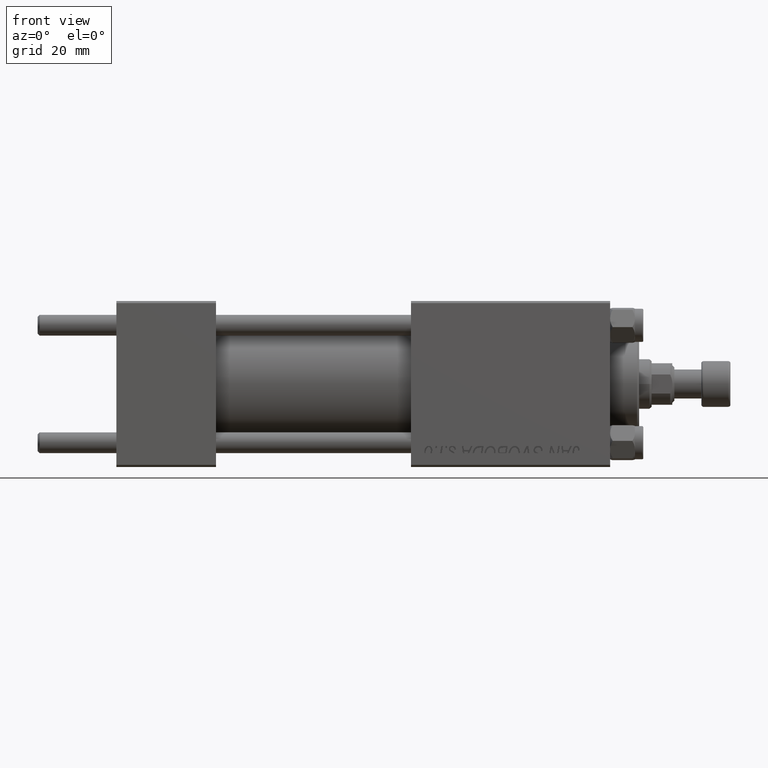
[diagram: clean part render]
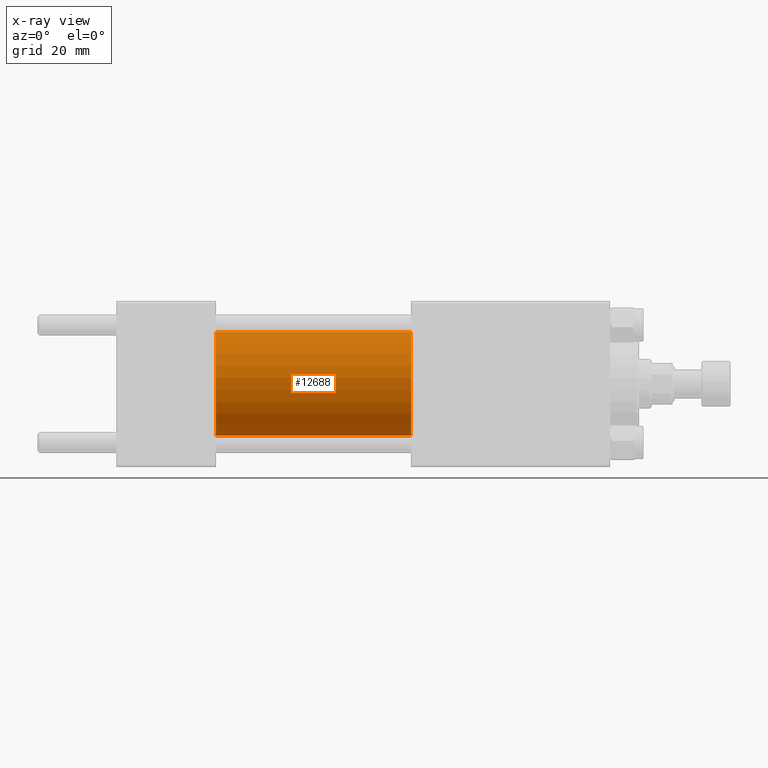
[diagram: x-ray — body ghosted, one internal face saturated and labeled with its STEP entity id]
A machine part, front view, then the same camera in x-ray: the body is ghosted and one INTERNAL B-rep face — a face not visible from any outside direction — is saturated and labeled: STEP entity #12688.
In plain terms, the highlighted cylindrical surface (partial cylindrical patch) has radius 12.5 mm, axis along (-1, -0, -0).
Its self-contained STEP definition (entity closure, byte-faithful):
#4900 = EDGE_CURVE ( 'NONE', #33485, #19794, #13715, .T. ) ;
#6303 = EDGE_LOOP ( 'NONE', ( #9184, #34279, #17910, #30573 ) ) ;
#7961 = CARTESIAN_POINT ( 'NONE',  ( 24.00000000000000000, 0.000000000000000000, 12.49999999999999645 ) ) ;
#9184 = ORIENTED_EDGE ( 'NONE', *, *, #27917, .T. ) ;
#10155 = CARTESIAN_POINT ( 'NONE',  ( 71.00000000000001421, 0.000000000000000000, 12.49999999999999645 ) ) ;
#11142 = CIRCLE ( 'NONE', #39593, 12.49999999999999645 ) ;
#11240 = CARTESIAN_POINT ( 'NONE',  ( 24.00000000000000000, 0.000000000000000000, 0.000000000000000000 ) ) ;
#11495 = DIRECTION ( 'NONE',  ( 1.000000000000000000, 0.000000000000000000, 0.000000000000000000 ) ) ;
#12106 = AXIS2_PLACEMENT_3D ( 'NONE', #11240, #26777, #18628 ) ;
#12688 = ADVANCED_FACE ( 'NONE', ( #33862 ), #21645, .F. ) ;
#13715 = CIRCLE ( 'NONE', #12106, 12.49999999999999645 ) ;
#14783 = DIRECTION ( 'NONE',  ( -1.000000000000000000, -0.000000000000000000, -0.000000000000000000 ) ) ;
#16933 = VECTOR ( 'NONE', #50309, 1000.000000000000000 ) ;
#17910 = ORIENTED_EDGE ( 'NONE', *, *, #4900, .F. ) ;
#18628 = DIRECTION ( 'NONE',  ( 0.000000000000000000, 0.000000000000000000, -1.000000000000000000 ) ) ;
#19794 = VERTEX_POINT ( 'NONE', #24599 ) ;
#21645 = CYLINDRICAL_SURFACE ( 'NONE', #32537, 12.49999999999999645 ) ;
#24599 = CARTESIAN_POINT ( 'NONE',  ( 24.00000000000000000, 1.530808498934191127E-15, -12.49999999999999645 ) ) ;
#25877 = VECTOR ( 'NONE', #38244, 1000.000000000000000 ) ;
#26531 = LINE ( 'NONE', #42053, #25877 ) ;
#26777 = DIRECTION ( 'NONE',  ( 1.000000000000000000, 0.000000000000000000, 0.000000000000000000 ) ) ;
#27776 = DIRECTION ( 'NONE',  ( 0.000000000000000000, 0.000000000000000000, -1.000000000000000000 ) ) ;
#27917 = EDGE_CURVE ( 'NONE', #48397, #35194, #11142, .T. ) ;
#29284 = DIRECTION ( 'NONE',  ( 0.000000000000000000, 0.000000000000000000, 1.000000000000000000 ) ) ;
#30195 = CARTESIAN_POINT ( 'NONE',  ( 71.00000000000001421, 1.530808498934191127E-15, -12.49999999999999645 ) ) ;
#30573 = ORIENTED_EDGE ( 'NONE', *, *, #35453, .F. ) ;
#32537 = AXIS2_PLACEMENT_3D ( 'NONE', #37435, #14783, #29284 ) ;
#33485 = VERTEX_POINT ( 'NONE', #7961 ) ;
#33862 = FACE_OUTER_BOUND ( 'NONE', #6303, .T. ) ;
#34279 = ORIENTED_EDGE ( 'NONE', *, *, #35731, .T. ) ;
#35194 = VERTEX_POINT ( 'NONE', #43188 ) ;
#35453 = EDGE_CURVE ( 'NONE', #48397, #33485, #26531, .T. ) ;
#35731 = EDGE_CURVE ( 'NONE', #35194, #19794, #49807, .T. ) ;
#37435 = CARTESIAN_POINT ( 'NONE',  ( 71.00000000000001421, 0.000000000000000000, 0.000000000000000000 ) ) ;
#38244 = DIRECTION ( 'NONE',  ( -1.000000000000000000, -0.000000000000000000, -0.000000000000000000 ) ) ;
#39593 = AXIS2_PLACEMENT_3D ( 'NONE', #47121, #11495, #27776 ) ;
#42053 = CARTESIAN_POINT ( 'NONE',  ( 71.00000000000001421, 0.000000000000000000, 12.49999999999999645 ) ) ;
#43188 = CARTESIAN_POINT ( 'NONE',  ( 71.00000000000001421, 1.530808498934191127E-15, -12.49999999999999645 ) ) ;
#47121 = CARTESIAN_POINT ( 'NONE',  ( 71.00000000000001421, 0.000000000000000000, 0.000000000000000000 ) ) ;
#48397 = VERTEX_POINT ( 'NONE', #10155 ) ;
#49807 = LINE ( 'NONE', #30195, #16933 ) ;
#50309 = DIRECTION ( 'NONE',  ( -1.000000000000000000, -0.000000000000000000, -0.000000000000000000 ) ) ;